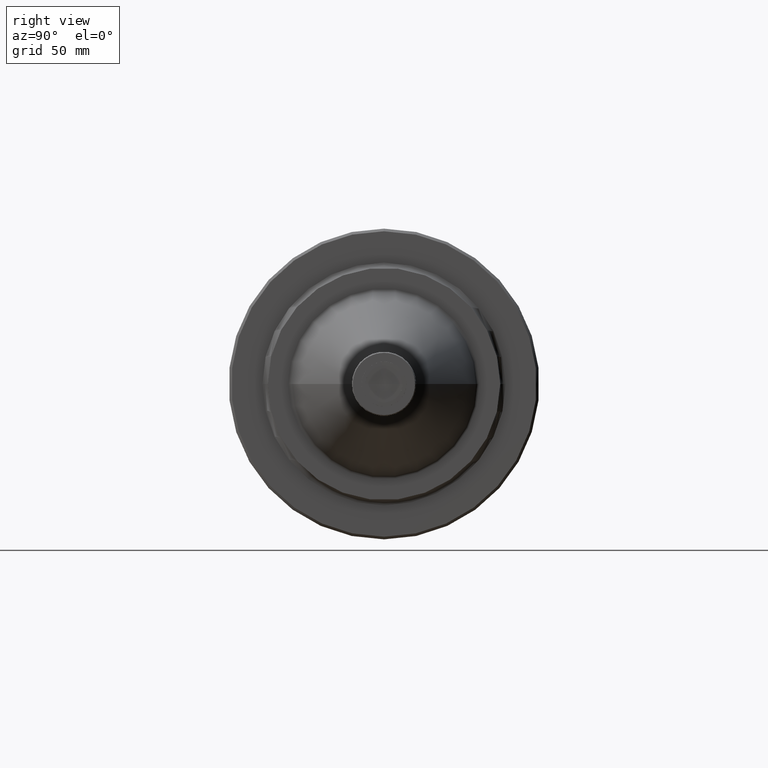
[diagram: clean part render]
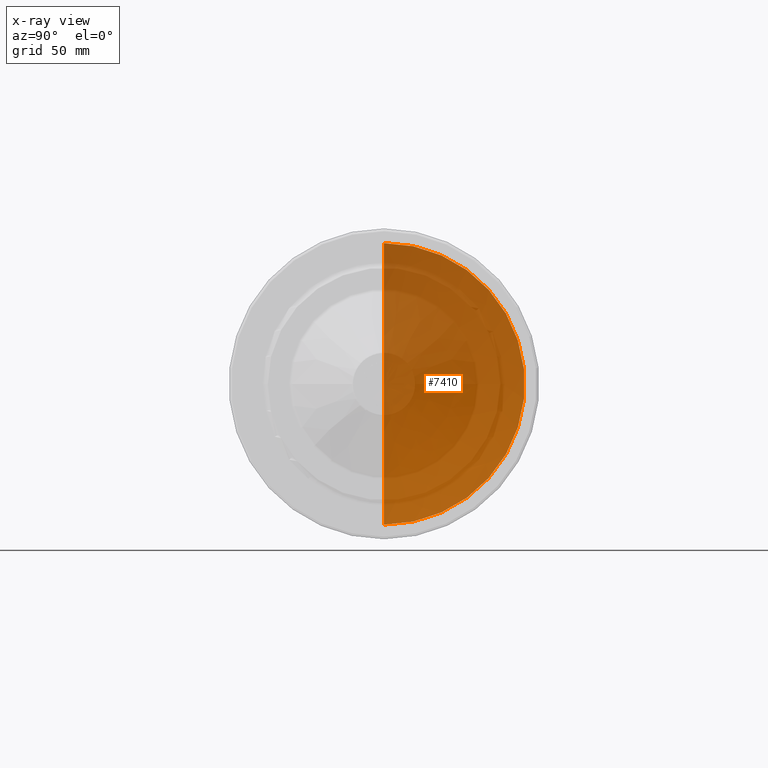
[diagram: x-ray — body ghosted, one internal face saturated and labeled with its STEP entity id]
A machine part, right view, then the same camera in x-ray: the body is ghosted and one INTERNAL B-rep face — a face not visible from any outside direction — is saturated and labeled: STEP entity #7410.
In plain terms, the highlighted face is a freeform B-spline surface patch.
Its self-contained STEP definition (entity closure, byte-faithful):
#84 = CARTESIAN_POINT ( 'NONE',  ( 38.46552658270918800, 1.958210231836347700E-014, 11.72684612818897200 ) ) ;
#128 = CARTESIAN_POINT ( 'NONE',  ( 295.1218385715999400, 0.0000000000000000000, -68.22315387180000800 ) ) ;
#136 = CARTESIAN_POINT ( 'NONE',  ( 26.30133157159991700, 0.0000000000000000000, -68.22315387180000800 ) ) ;
#149 = DIRECTION ( 'NONE',  ( 0.0000000000000000000, 0.0000000000000000000, 1.000000000000000000 ) ) ;
#297 = EDGE_CURVE ( 'NONE', #443, #3714, #4778, .T. ) ;
#443 = VERTEX_POINT ( 'NONE', #2091 ) ;
#635 = CARTESIAN_POINT ( 'NONE',  ( 30.38705284860085200, 1.323020240985580000E-014, -14.20675331015566600 ) ) ;
#657 = CARTESIAN_POINT ( 'NONE',  ( 26.30133157159992100, -3.326473720023287100E-015, -95.38587313370725000 ) ) ;
#709 = CARTESIAN_POINT ( 'NONE',  ( 26.30133157159992100, 6.652947440046572600E-015, -41.06043460989275900 ) ) ;
#798 = ORIENTED_EDGE ( 'NONE', *, *, #5091, .F. ) ;
#1815 = CIRCLE ( 'NONE', #2552, 79.94999999998890400 ) ;
#2091 = CARTESIAN_POINT ( 'NONE',  ( 26.30133157159991700, 0.0000000000000000000, -68.22315387180000800 ) ) ;
#2523 = DIRECTION ( 'NONE',  ( 0.0000000000000000000, -1.000000000000000000, 1.224646799147353200E-016 ) ) ;
#2552 = AXIS2_PLACEMENT_3D ( 'NONE', #2922, #6474, #149 ) ;
#2653 = ORIENTED_EDGE ( 'NONE', *, *, #297, .T. ) ;
#2869 =( BOUNDED_SURFACE ( )  B_SPLINE_SURFACE ( 3, 3, ( 
 ( #3513, #3569, #2956, #136 ),
 ( #657, #5295, #5944, #709 ),
 ( #4104, #5923, #6517, #635 ),
 ( #2983, #4771, #4683, #84 ) ),
 .UNSPECIFIED., .F., .F., .F. ) 
 B_SPLINE_SURFACE_WITH_KNOTS ( ( 4, 4 ),
 ( 4, 4 ),
 ( 0.0000000000000000000, 1.000000000000000000 ),
 ( 0.0000000000000000000, 1.000000000000000000 ),
 .UNSPECIFIED. ) 
 GEOMETRIC_REPRESENTATION_ITEM ( )  RATIONAL_B_SPLINE_SURFACE ( (
 ( 1.000000000000000000, 0.3333333333333334300, 0.3333333333333334300, 1.000000000000000000),
 ( 0.9924151442229727200, 0.3308050480743243100, 0.3308050480743243100, 0.9924151442229727200),
 ( 0.9924151442229727200, 0.3308050480743243100, 0.3308050480743243100, 0.9924151442229727200),
 ( 1.000000000000000000, 0.3333333333333334300, 0.3333333333333334300, 1.000000000000000000) ) ) 
 REPRESENTATION_ITEM ( '' )  SURFACE ( )  );
#2922 = CARTESIAN_POINT ( 'NONE',  ( 38.46552658270918800, 0.0000000000000000000, -68.22315387180000800 ) ) ;
#2956 = CARTESIAN_POINT ( 'NONE',  ( 26.30133157159991700, 0.0000000000000000000, -68.22315387180000800 ) ) ;
#2983 = CARTESIAN_POINT ( 'NONE',  ( 38.46552658270918800, -9.791051159181736900E-015, -148.1731538717889700 ) ) ;
#3000 = CIRCLE ( 'NONE', #5134, 268.8205070000000200 ) ;
#3125 = DIRECTION ( 'NONE',  ( 0.0000000000000000000, 1.000000000000000000, 0.0000000000000000000 ) ) ;
#3513 = CARTESIAN_POINT ( 'NONE',  ( 26.30133157159991700, 0.0000000000000000000, -68.22315387180000800 ) ) ;
#3569 = CARTESIAN_POINT ( 'NONE',  ( 26.30133157159991700, 0.0000000000000000000, -68.22315387180000800 ) ) ;
#3641 = DIRECTION ( 'NONE',  ( -1.000000000000000000, 0.0000000000000000000, 0.0000000000000000000 ) ) ;
#3689 = FACE_OUTER_BOUND ( 'NONE', #4340, .T. ) ;
#3714 = VERTEX_POINT ( 'NONE', #6604 ) ;
#3899 = ORIENTED_EDGE ( 'NONE', *, *, #3960, .T. ) ;
#3960 = EDGE_CURVE ( 'NONE', #3714, #3984, #1815, .T. ) ;
#3984 = VERTEX_POINT ( 'NONE', #5386 ) ;
#4104 = CARTESIAN_POINT ( 'NONE',  ( 30.38705284860085200, -6.615101204927900800E-015, -122.2395544334443400 ) ) ;
#4340 = EDGE_LOOP ( 'NONE', ( #798, #2653, #3899 ) ) ;
#4683 = CARTESIAN_POINT ( 'NONE',  ( 38.46552658270918800, 159.8999999999779500, 11.72684612818893300 ) ) ;
#4771 = CARTESIAN_POINT ( 'NONE',  ( 38.46552658270918800, 159.8999999999778900, -148.1731538717890300 ) ) ;
#4778 = CIRCLE ( 'NONE', #6540, 268.8205070000000200 ) ;
#5091 = EDGE_CURVE ( 'NONE', #443, #3984, #3000, .T. ) ;
#5134 = AXIS2_PLACEMENT_3D ( 'NONE', #6209, #3125, #6773 ) ;
#5295 = CARTESIAN_POINT ( 'NONE',  ( 26.30133157159991700, 54.32543852381448300, -95.38587313370726400 ) ) ;
#5386 = CARTESIAN_POINT ( 'NONE',  ( 38.46552658270921700, 0.0000000000000000000, 11.72684612818895800 ) ) ;
#5923 = CARTESIAN_POINT ( 'NONE',  ( 30.38705284860085200, 108.0328011232886400, -122.2395544334443500 ) ) ;
#5944 = CARTESIAN_POINT ( 'NONE',  ( 26.30133157159991700, 54.32543852381449100, -41.06043460989277300 ) ) ;
#6209 = CARTESIAN_POINT ( 'NONE',  ( 295.1218385715999400, 0.0000000000000000000, -68.22315387180000800 ) ) ;
#6474 = DIRECTION ( 'NONE',  ( 1.000000000000000000, 0.0000000000000000000, 0.0000000000000000000 ) ) ;
#6517 = CARTESIAN_POINT ( 'NONE',  ( 30.38705284860085200, 108.0328011232886500, -14.20675331015569400 ) ) ;
#6540 = AXIS2_PLACEMENT_3D ( 'NONE', #128, #2523, #3641 ) ;
#6604 = CARTESIAN_POINT ( 'NONE',  ( 38.46552658270921700, -9.791051159181738400E-015, -148.1731538717889700 ) ) ;
#6773 = DIRECTION ( 'NONE',  ( -1.000000000000000000, 0.0000000000000000000, 0.0000000000000000000 ) ) ;
#7410 = ADVANCED_FACE ( 'NONE', ( #3689 ), #2869, .T. ) ;